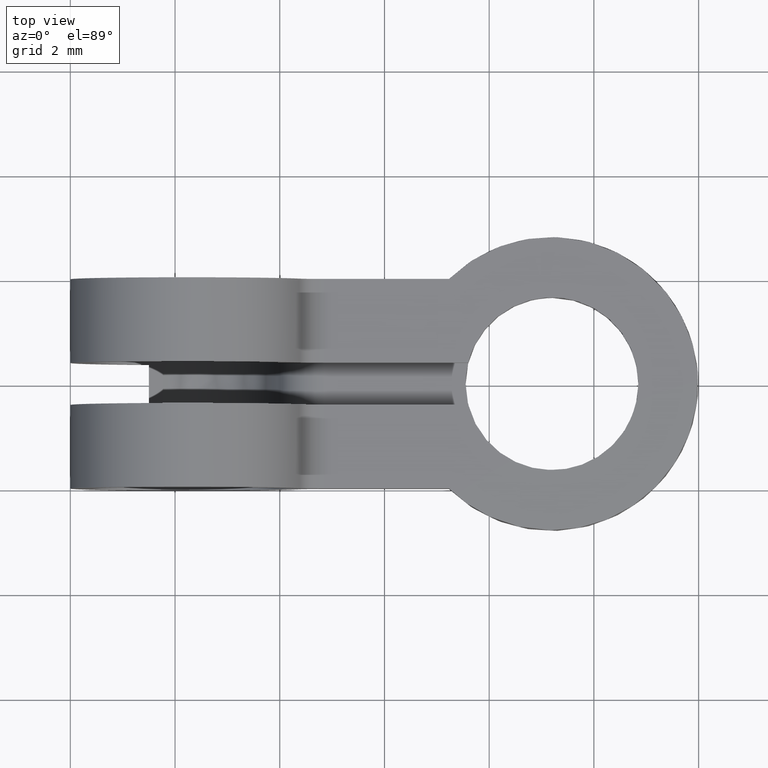
[diagram: clean part render]
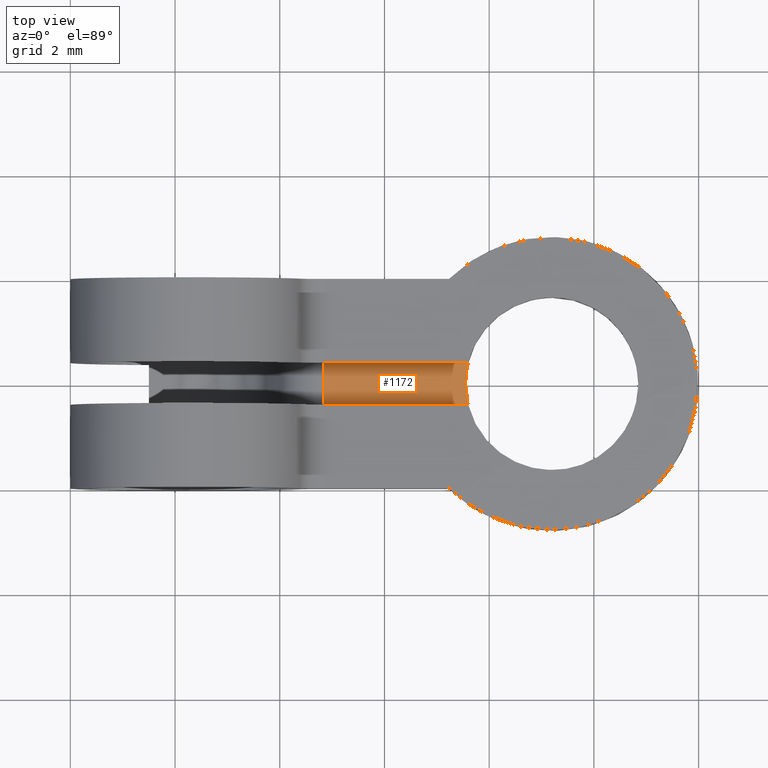
[diagram: same view with one face highlighted and labeled with its STEP entity id]
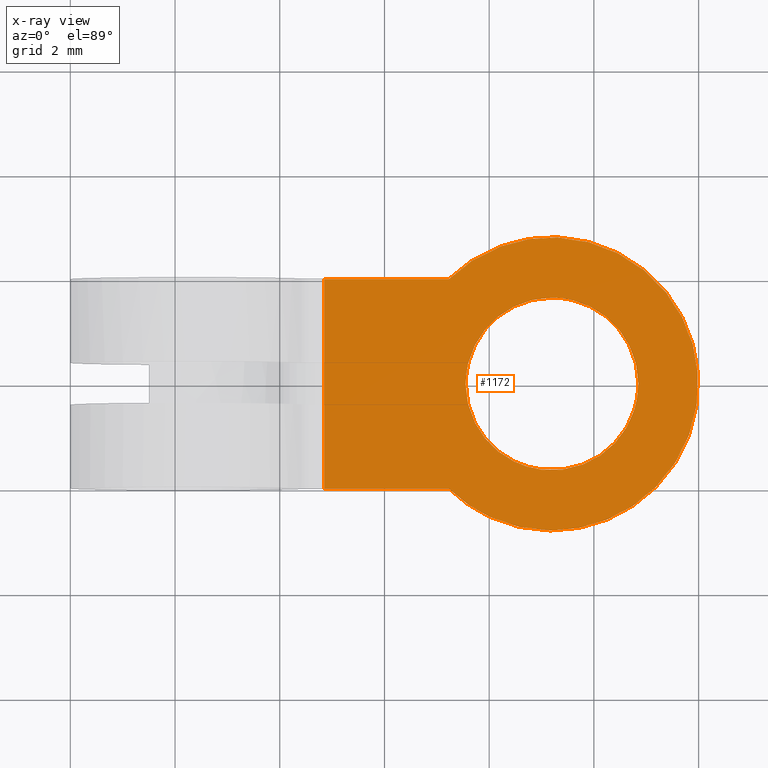
[diagram: x-ray of the same camera — body ghosted, the highlighted face saturated]
A machine part, top view. The second image highlights one B-rep face of the part: STEP entity #1172.
The next image is the same camera in x-ray: the body ghosted, the highlighted face saturated — about 0% of this face is hidden behind the body in this view.
In plain terms, the highlighted face is a freeform B-spline surface patch.
Its self-contained STEP definition (entity closure, byte-faithful):
#66=CARTESIAN_POINT('',(5.549999999999900,0.0,-0.005000000000033));
#67=VERTEX_POINT('',#66);
#68=CARTESIAN_POINT('',(6.995189237075451,-1.637239307917479,-0.005000000000076));
#69=VERTEX_POINT('',#68);
#70=CARTESIAN_POINT('',(5.549999999999900,0.0,-0.005000000000033));
#71=CARTESIAN_POINT('',(5.549999999999901,-1.456453480088002,-0.005000000000033));
#72=CARTESIAN_POINT('',(6.995189237075451,-1.637239307917480,-0.005000000000076));
#80=(BOUNDED_CURVE()B_SPLINE_CURVE(2,(#70,#71,#72),.UNSPECIFIED.,.F.,.U.)B_SPLINE_CURVE_WITH_KNOTS((3,3),(0.0,0.228526161779335),.UNSPECIFIED.)CURVE()GEOMETRIC_REPRESENTATION_ITEM()RATIONAL_B_SPLINE_CURVE((1.0,0.732264947573467,0.954005606385532))REPRESENTATION_ITEM(''));
#81=EDGE_CURVE('',#67,#69,#80,.T.);
#122=CARTESIAN_POINT('',(7.214396696831251,1.649937191263956,-0.004999999999926));
#123=VERTEX_POINT('',#122);
#129=CARTESIAN_POINT('',(7.214396696831251,1.649937191263956,-0.004999999999926));
#130=CARTESIAN_POINT('',(7.207198485423994,1.650000000000000,-0.005000000000033));
#131=CARTESIAN_POINT('',(7.199999999999900,1.650000000000000,-0.005000000000033));
#132=CARTESIAN_POINT('',(5.549999999999900,1.649999999999999,-0.005000000000033));
#133=CARTESIAN_POINT('',(5.549999999999900,0.0,-0.005000000000033));
#141=(BOUNDED_CURVE()B_SPLINE_CURVE(2,(#129,#130,#131,#132,#133),.UNSPECIFIED.,.F.,.U.)B_SPLINE_CURVE_WITH_KNOTS((3,2,3),(0.748460328439825,0.750000000000000,1.0),.UNSPECIFIED.)CURVE()GEOMETRIC_REPRESENTATION_ITEM()RATIONAL_B_SPLINE_CURVE((0.996414543664202,0.998196162563299,1.0,0.707106781186548,1.0))REPRESENTATION_ITEM(''));
#142=EDGE_CURVE('',#123,#67,#141,.T.);
#169=CARTESIAN_POINT('',(8.849999999999900,0.0,-0.005000000000033));
#170=VERTEX_POINT('',#169);
#171=CARTESIAN_POINT('',(6.995189237075450,-1.637239307917479,-0.005000000000076));
#172=CARTESIAN_POINT('',(7.097197315233557,-1.650000000000000,-0.005000000000033));
#173=CARTESIAN_POINT('',(7.199999999999900,-1.650000000000000,-0.005000000000033));
#174=CARTESIAN_POINT('',(8.849999999999902,-1.649999999999999,-0.005000000000033));
#175=CARTESIAN_POINT('',(8.849999999999900,0.0,-0.005000000000033));
#183=(BOUNDED_CURVE()B_SPLINE_CURVE(2,(#171,#172,#173,#174,#175),.UNSPECIFIED.,.F.,.U.)B_SPLINE_CURVE_WITH_KNOTS((3,2,3),(0.228526161779336,0.250000000000000,0.500000000000000),.UNSPECIFIED.)CURVE()GEOMETRIC_REPRESENTATION_ITEM()RATIONAL_B_SPLINE_CURVE((0.954005606385532,0.974841833613081,1.0,0.707106781186548,1.0))REPRESENTATION_ITEM(''));
#184=EDGE_CURVE('',#69,#170,#183,.T.);
#186=CARTESIAN_POINT('',(8.849999999999900,0.0,-0.005000000000033));
#187=CARTESIAN_POINT('',(8.849999999999900,1.635665566250241,-0.005000000000033));
#188=CARTESIAN_POINT('',(7.214396696831251,1.649937191263956,-0.004999999999926));
#196=(BOUNDED_CURVE()B_SPLINE_CURVE(2,(#186,#187,#188),.UNSPECIFIED.,.F.,.U.)B_SPLINE_CURVE_WITH_KNOTS((3,3),(0.500000000000000,0.748460328439825),.UNSPECIFIED.)CURVE()GEOMETRIC_REPRESENTATION_ITEM()RATIONAL_B_SPLINE_CURVE((1.0,0.708910618623248,0.996414543664202))REPRESENTATION_ITEM(''));
#197=EDGE_CURVE('',#170,#123,#196,.T.);
#547=CARTESIAN_POINT('',(2.846820170901330,1.999999999999780,-0.005000000000000));
#548=VERTEX_POINT('',#547);
#569=CARTESIAN_POINT('',(2.846820170901330,-2.0,-0.005000000000000));
#570=VERTEX_POINT('',#569);
#584=CARTESIAN_POINT('',(2.846820170901330,1.999999999999780,-0.005000000000000));
#585=CARTESIAN_POINT('',(2.846820170901330,-2.0,-0.005000000000000));
#586=QUASI_UNIFORM_CURVE('',1,(#584,#585),.UNSPECIFIED.,.F.,.U.);
#587=EDGE_CURVE('',#548,#570,#586,.T.);
#738=CARTESIAN_POINT('',(5.230408205773159,1.999999999999800,-0.005000000000033));
#739=VERTEX_POINT('',#738);
#740=CARTESIAN_POINT('',(5.230408205773360,-2.0,-0.005000000000000));
#741=VERTEX_POINT('',#740);
#742=CARTESIAN_POINT('',(5.230408205773157,1.999999999999803,-0.005000000000033));
#743=CARTESIAN_POINT('',(7.216847893402465,3.946305455802359,-0.005000000000033));
#744=CARTESIAN_POINT('',(9.176622337631224,1.973152727901278,-0.005000000000033));
#745=CARTESIAN_POINT('',(11.136396781859984,1.994932E-013,-0.005000000000033));
#746=CARTESIAN_POINT('',(9.176622337631423,-1.973152727901078,-0.005000000000033));
#747=CARTESIAN_POINT('',(7.216847893402863,-3.946305455802356,-0.005000000000033));
#748=CARTESIAN_POINT('',(5.230408205773360,-2.0,-0.005000000000000));
#756=(BOUNDED_CURVE()B_SPLINE_CURVE(2,(#742,#743,#744,#745,#746,#747,#748),.UNSPECIFIED.,.F.,.U.)B_SPLINE_CURVE_WITH_KNOTS((3,2,2,3),(0.0,0.333333333333333,0.666666666666667,1.0),.UNSPECIFIED.)CURVE()GEOMETRIC_REPRESENTATION_ITEM()RATIONAL_B_SPLINE_CURVE((1.0,0.709507977725508,1.0,0.709507977725508,1.0,0.709507977725508,1.0))REPRESENTATION_ITEM(''));
#757=EDGE_CURVE('',#739,#741,#756,.T.);
#940=CARTESIAN_POINT('',(2.846820170901330,-2.0,-0.005000000000000));
#941=CARTESIAN_POINT('',(5.230408205773360,-2.0,-0.005000000000000));
#942=QUASI_UNIFORM_CURVE('',1,(#940,#941),.UNSPECIFIED.,.F.,.U.);
#943=EDGE_CURVE('',#570,#741,#942,.T.);
#978=CARTESIAN_POINT('',(5.230408205773159,1.999999999999800,-0.005000000000033));
#979=CARTESIAN_POINT('',(2.846820170901330,1.999999999999780,-0.005000000000000));
#980=QUASI_UNIFORM_CURVE('',1,(#978,#979),.UNSPECIFIED.,.F.,.U.);
#981=EDGE_CURVE('',#739,#548,#980,.T.);
#1155=CARTESIAN_POINT('',(10.346801617453290,-3.079648600602539,-0.005000000000000));
#1156=CARTESIAN_POINT('',(2.490018170257884,-3.079648600602539,-0.005000000000000));
#1157=CARTESIAN_POINT('',(10.346801617453290,3.079648624243817,-0.005000000000000));
#1158=CARTESIAN_POINT('',(2.490018170257884,3.079648624243817,-0.005000000000000));
#1159=B_SPLINE_SURFACE_WITH_KNOTS('',1,1,((#1155,#1157),(#1156,#1158)),.UNSPECIFIED.,.F.,.F.,.U.,(2,2),(2,2),(0.0,7.856783447195405),(0.0,6.159297224846356),.UNSPECIFIED.);
#1160=ORIENTED_EDGE('',*,*,#757,.F.);
#1161=ORIENTED_EDGE('',*,*,#981,.T.);
#1162=ORIENTED_EDGE('',*,*,#587,.T.);
#1163=ORIENTED_EDGE('',*,*,#943,.T.);
#1164=EDGE_LOOP('',(#1160,#1161,#1162,#1163));
#1165=FACE_OUTER_BOUND('',#1164,.T.);
#1166=ORIENTED_EDGE('',*,*,#197,.F.);
#1167=ORIENTED_EDGE('',*,*,#184,.F.);
#1168=ORIENTED_EDGE('',*,*,#81,.F.);
#1169=ORIENTED_EDGE('',*,*,#142,.F.);
#1170=EDGE_LOOP('',(#1166,#1167,#1168,#1169));
#1171=FACE_BOUND('',#1170,.T.);
#1172=ADVANCED_FACE('',(#1165,#1171),#1159,.F.);